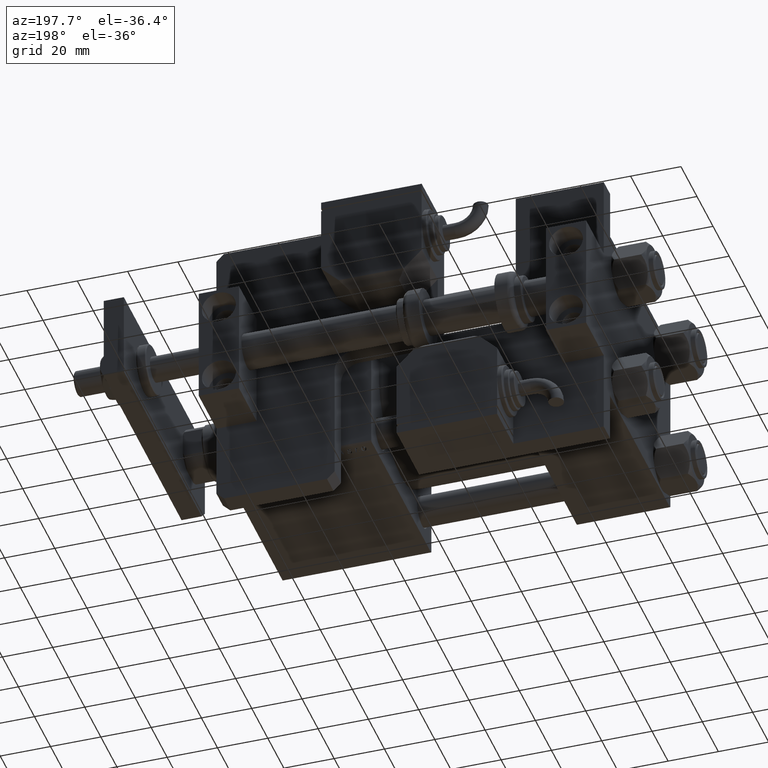
[diagram: clean part render]
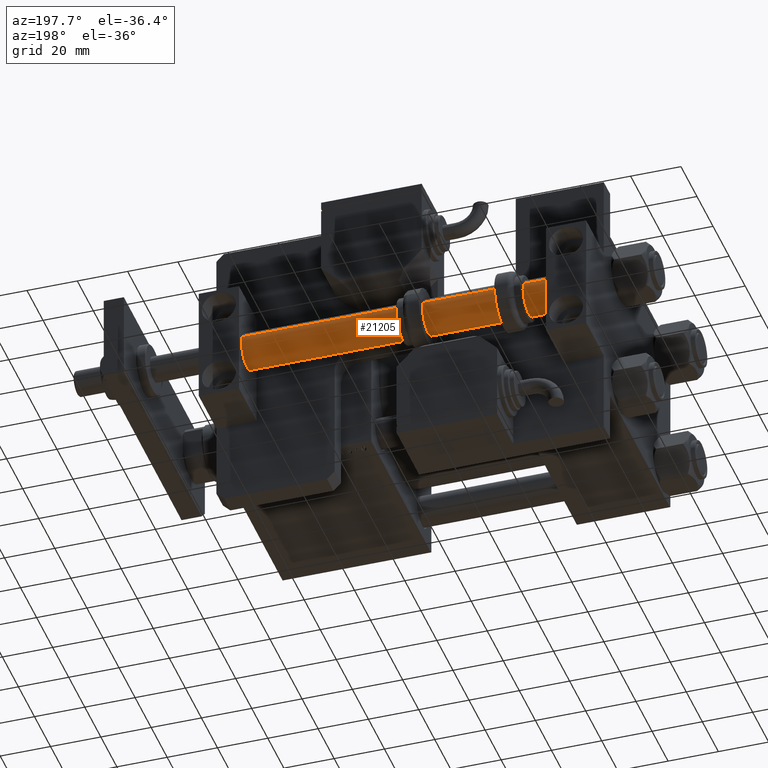
[diagram: same view with one face highlighted and labeled with its STEP entity id]
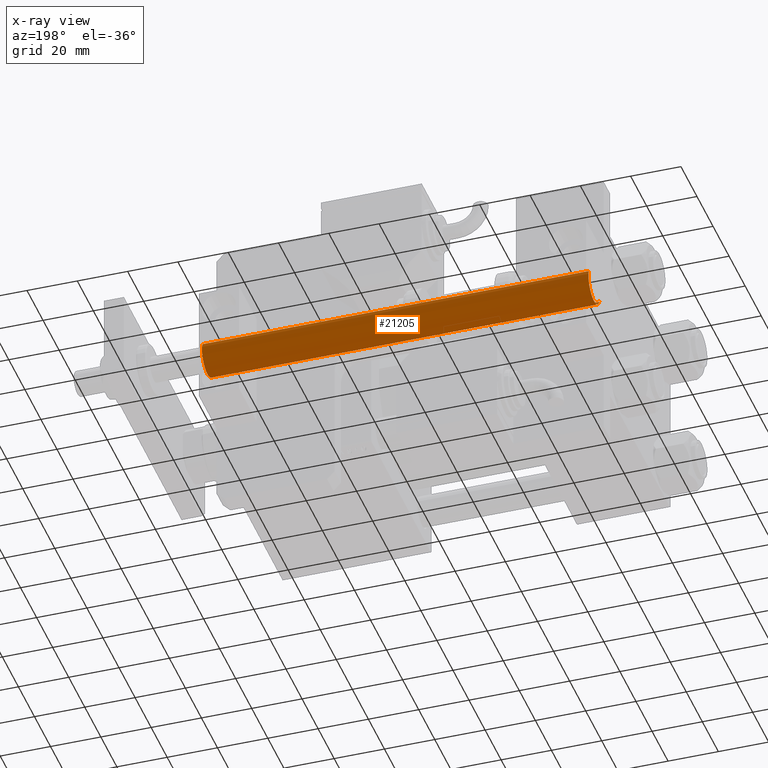
[diagram: x-ray of the same camera — body ghosted, the highlighted face saturated]
A machine part, auxiliary view. The second image highlights one B-rep face of the part: STEP entity #21205.
The next image is the same camera in x-ray: the body ghosted, the highlighted face saturated — about 0% of this face is hidden behind the body in this view.
In plain terms, the highlighted cylindrical surface (edge-blend (fillet) strip) has radius 7 mm, axis along (1, 0, 0).
Its self-contained STEP definition (entity closure, byte-faithful):
#323 = CARTESIAN_POINT ( 'NONE',  ( -7.000000000000000000, 0.000000000000000000, 154.0000000000000000 ) ) ;
#1091 = VECTOR ( 'NONE', #11585, 1000.000000000000000 ) ;
#2504 = CARTESIAN_POINT ( 'NONE',  ( 0.000000000000000000, 0.000000000000000000, 154.0000000000000000 ) ) ;
#2798 = EDGE_CURVE ( 'NONE', #31119, #12110, #7569, .T. ) ;
#4367 = CARTESIAN_POINT ( 'NONE',  ( 0.000000000000000000, 0.000000000000000000, 0.2999999999999947153 ) ) ;
#7296 = DIRECTION ( 'NONE',  ( 1.000000000000000000, 0.000000000000000000, 0.000000000000000000 ) ) ;
#7569 = CIRCLE ( 'NONE', #54551, 7.000000000000000000 ) ;
#7987 = AXIS2_PLACEMENT_3D ( 'NONE', #2504, #55091, #7296 ) ;
#11516 = EDGE_CURVE ( 'NONE', #13557, #12192, #15189, .T. ) ;
#11585 = DIRECTION ( 'NONE',  ( -0.000000000000000000, -0.000000000000000000, -1.000000000000000000 ) ) ;
#12110 = VERTEX_POINT ( 'NONE', #28662 ) ;
#12192 = VERTEX_POINT ( 'NONE', #42780 ) ;
#13557 = VERTEX_POINT ( 'NONE', #51753 ) ;
#15189 = CIRCLE ( 'NONE', #7987, 7.000000000000000000 ) ;
#15343 = AXIS2_PLACEMENT_3D ( 'NONE', #17951, #39982, #35457 ) ;
#15544 = LINE ( 'NONE', #45255, #1091 ) ;
#17951 = CARTESIAN_POINT ( 'NONE',  ( 0.000000000000000000, 0.000000000000000000, 154.0000000000000000 ) ) ;
#21205 = ADVANCED_FACE ( 'NONE', ( #43947 ), #31781, .T. ) ;
#21615 = DIRECTION ( 'NONE',  ( -0.000000000000000000, -0.000000000000000000, 1.000000000000000000 ) ) ;
#25462 = EDGE_CURVE ( 'NONE', #13557, #31119, #15544, .T. ) ;
#25500 = ORIENTED_EDGE ( 'NONE', *, *, #2798, .T. ) ;
#26345 = ORIENTED_EDGE ( 'NONE', *, *, #51880, .F. ) ;
#28662 = CARTESIAN_POINT ( 'NONE',  ( -7.000000000000000000, 0.000000000000000000, 0.2999999999999947153 ) ) ;
#31119 = VERTEX_POINT ( 'NONE', #32395 ) ;
#31781 = CYLINDRICAL_SURFACE ( 'NONE', #15343, 7.000000000000000000 ) ;
#32126 = ORIENTED_EDGE ( 'NONE', *, *, #11516, .F. ) ;
#32395 = CARTESIAN_POINT ( 'NONE',  ( 7.000000000000000000, 8.572527594031473190E-16, 0.2999999999999947153 ) ) ;
#32843 = EDGE_LOOP ( 'NONE', ( #32126, #55251, #25500, #26345 ) ) ;
#33966 = LINE ( 'NONE', #323, #49401 ) ;
#35457 = DIRECTION ( 'NONE',  ( -1.000000000000000000, 0.000000000000000000, 0.000000000000000000 ) ) ;
#38491 = DIRECTION ( 'NONE',  ( -0.000000000000000000, -0.000000000000000000, -1.000000000000000000 ) ) ;
#38854 = DIRECTION ( 'NONE',  ( 1.000000000000000000, 0.000000000000000000, 0.000000000000000000 ) ) ;
#39982 = DIRECTION ( 'NONE',  ( -0.000000000000000000, -0.000000000000000000, -1.000000000000000000 ) ) ;
#42780 = CARTESIAN_POINT ( 'NONE',  ( -7.000000000000000000, 0.000000000000000000, 154.0000000000000000 ) ) ;
#43947 = FACE_OUTER_BOUND ( 'NONE', #32843, .T. ) ;
#45255 = CARTESIAN_POINT ( 'NONE',  ( 7.000000000000000000, 8.572527594031473190E-16, 154.0000000000000000 ) ) ;
#49401 = VECTOR ( 'NONE', #38491, 1000.000000000000000 ) ;
#51753 = CARTESIAN_POINT ( 'NONE',  ( 7.000000000000000000, 8.572527594031473190E-16, 154.0000000000000000 ) ) ;
#51880 = EDGE_CURVE ( 'NONE', #12192, #12110, #33966, .T. ) ;
#54551 = AXIS2_PLACEMENT_3D ( 'NONE', #4367, #21615, #38854 ) ;
#55091 = DIRECTION ( 'NONE',  ( 0.000000000000000000, 0.000000000000000000, 1.000000000000000000 ) ) ;
#55251 = ORIENTED_EDGE ( 'NONE', *, *, #25462, .T. ) ;